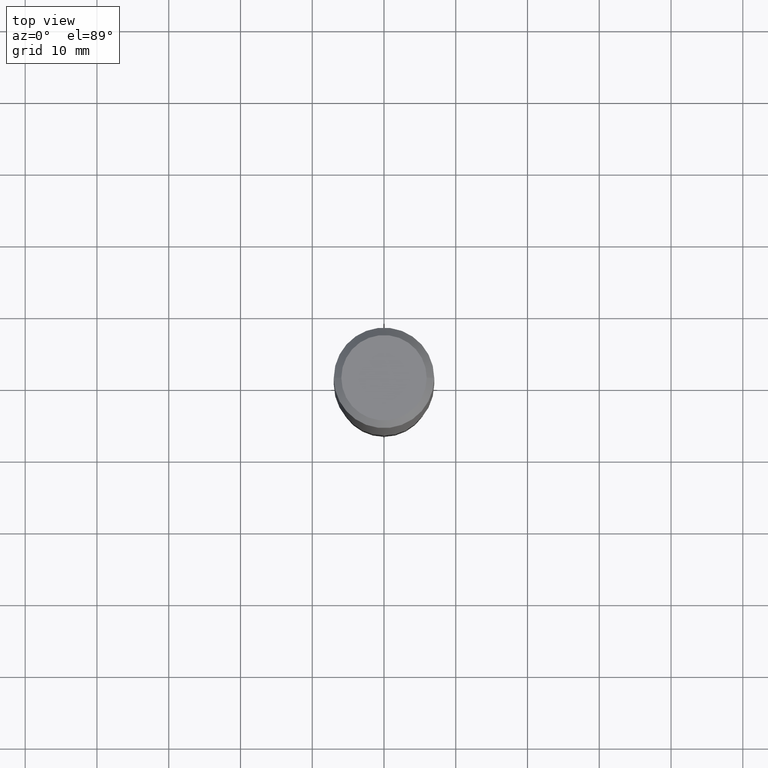
[diagram: clean part render]
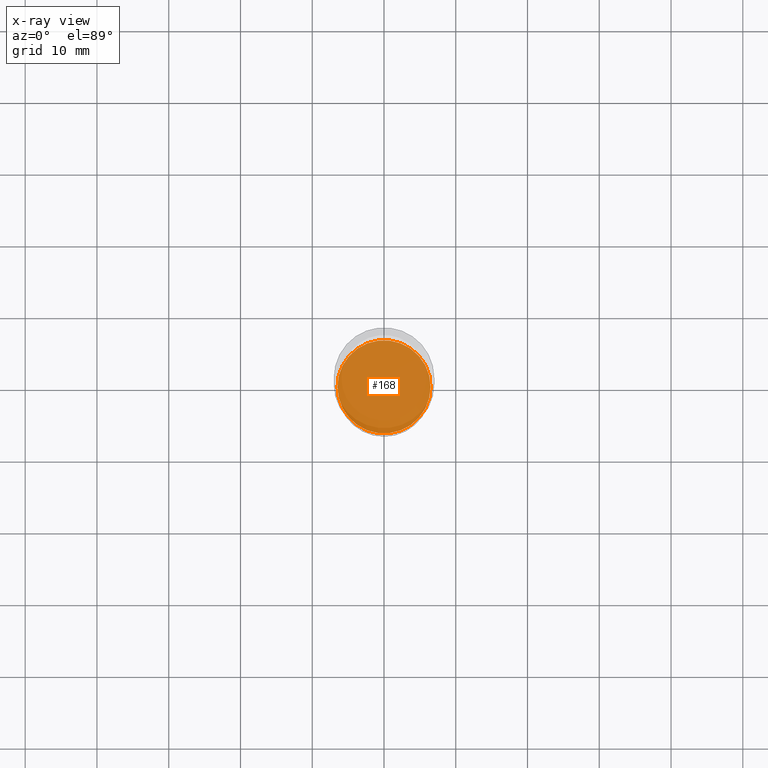
[diagram: x-ray — body ghosted, one internal face saturated and labeled with its STEP entity id]
A machine part, top view, then the same camera in x-ray: the body is ghosted and one INTERNAL B-rep face — a face not visible from any outside direction — is saturated and labeled: STEP entity #168.
In plain terms, the highlighted planar face has unit normal (-0, 0, 1).
Its self-contained STEP definition (entity closure, byte-faithful):
#13 = CARTESIAN_POINT ( 'NONE',  ( 7.086968600324527615E-29, -1.011831291996743858E-14, -2.898000000000000576 ) ) ;
#15 = DIRECTION ( 'NONE',  ( -2.438088387897960049E-29, 3.491481338843145188E-15, 1.000000000000000000 ) ) ;
#19 = FACE_OUTER_BOUND ( 'NONE', #454, .T. ) ;
#22 = AXIS2_PLACEMENT_3D ( 'NONE', #336, #15, #161 ) ;
#37 = CIRCLE ( 'NONE', #320, 0.2554000000000000159 ) ;
#49 = CIRCLE ( 'NONE', #346, 0.2554000000000000159 ) ;
#51 = DIRECTION ( 'NONE',  ( 1.000000000000000000, -6.982962677686262766E-15, 0.000000000000000000 ) ) ;
#94 = VERTEX_POINT ( 'NONE', #227 ) ;
#143 = CARTESIAN_POINT ( 'NONE',  ( -0.2554000000000000159, -8.300937545662030209E-15, -2.898000000000000576 ) ) ;
#145 = EDGE_CURVE ( 'NONE', #94, #395, #49, .T. ) ;
#161 = DIRECTION ( 'NONE',  ( 1.000000000000000000, -6.982962677686265922E-15, 4.876176775795935793E-29 ) ) ;
#168 = ADVANCED_FACE ( 'NONE', ( #19 ), #328, .F. ) ;
#195 = DIRECTION ( 'NONE',  ( -2.445468806185136597E-29, 3.491481338843145583E-15, 1.000000000000000000 ) ) ;
#214 = EDGE_CURVE ( 'NONE', #395, #94, #37, .T. ) ;
#227 = CARTESIAN_POINT ( 'NONE',  ( 0.2554000000000000159, -1.190176158784851131E-14, -2.898000000000000576 ) ) ;
#230 = DIRECTION ( 'NONE',  ( -2.445468806185136597E-29, 3.491481338843145583E-15, 1.000000000000000000 ) ) ;
#320 = AXIS2_PLACEMENT_3D ( 'NONE', #373, #230, #51 ) ;
#328 = PLANE ( 'NONE',  #22 ) ;
#336 = CARTESIAN_POINT ( 'NONE',  ( 2.757807621517928410E-29, -1.631791784215932322E-14, -2.898000000000000576 ) ) ;
#346 = AXIS2_PLACEMENT_3D ( 'NONE', #13, #195, #406 ) ;
#355 = ORIENTED_EDGE ( 'NONE', *, *, #145, .F. ) ;
#373 = CARTESIAN_POINT ( 'NONE',  ( 7.086968600324527615E-29, -1.011831291996743858E-14, -2.898000000000000576 ) ) ;
#393 = ORIENTED_EDGE ( 'NONE', *, *, #214, .F. ) ;
#395 = VERTEX_POINT ( 'NONE', #143 ) ;
#406 = DIRECTION ( 'NONE',  ( 1.000000000000000000, -6.982962677686262766E-15, 0.000000000000000000 ) ) ;
#454 = EDGE_LOOP ( 'NONE', ( #355, #393 ) ) ;